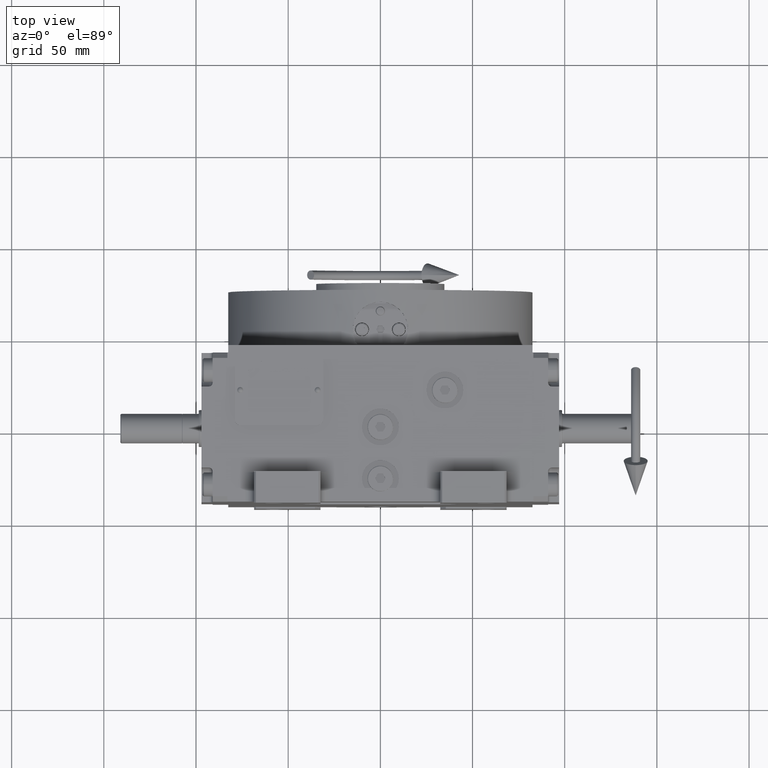
[diagram: clean part render]
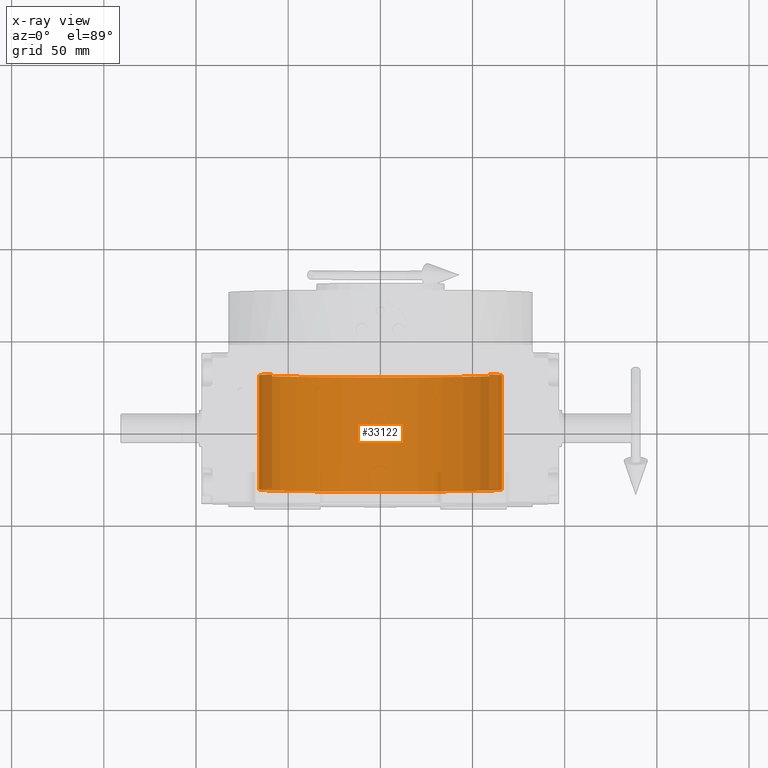
[diagram: x-ray — body ghosted, one internal face saturated and labeled with its STEP entity id]
A machine part, top view, then the same camera in x-ray: the body is ghosted and one INTERNAL B-rep face — a face not visible from any outside direction — is saturated and labeled: STEP entity #33122.
In plain terms, the highlighted cylindrical surface (partial cylindrical patch) has radius 66 mm, axis along (0, 1, 0).
Its self-contained STEP definition (entity closure, byte-faithful):
#372 = CIRCLE ( 'NONE', #14820, 66.00000000000000000 ) ;
#891 = VERTEX_POINT ( 'NONE', #11998 ) ;
#1172 = EDGE_CURVE ( 'NONE', #8907, #2842, #5791, .T. ) ;
#2842 = VERTEX_POINT ( 'NONE', #41459 ) ;
#4806 = AXIS2_PLACEMENT_3D ( 'NONE', #54785, #25354, #45394 ) ;
#5791 = LINE ( 'NONE', #44277, #28995 ) ;
#8907 = VERTEX_POINT ( 'NONE', #57338 ) ;
#11998 = CARTESIAN_POINT ( 'NONE',  ( 58.78775382679628336, -31.99999999999998579, 30.00000000000000000 ) ) ;
#14820 = AXIS2_PLACEMENT_3D ( 'NONE', #45154, #50629, #40610 ) ;
#15577 = FACE_OUTER_BOUND ( 'NONE', #22316, .T. ) ;
#16536 = DIRECTION ( 'NONE',  ( 0.000000000000000000, 0.000000000000000000, 1.000000000000000000 ) ) ;
#17998 = DIRECTION ( 'NONE',  ( 0.000000000000000000, -1.000000000000000000, 0.000000000000000000 ) ) ;
#22316 = EDGE_LOOP ( 'NONE', ( #47175, #62492, #27141, #36064 ) ) ;
#24417 = CIRCLE ( 'NONE', #4806, 66.00000000000000000 ) ;
#25354 = DIRECTION ( 'NONE',  ( -0.000000000000000000, 1.000000000000000000, -0.000000000000000000 ) ) ;
#27141 = ORIENTED_EDGE ( 'NONE', *, *, #47450, .T. ) ;
#27506 = LINE ( 'NONE', #47253, #37916 ) ;
#28995 = VECTOR ( 'NONE', #17998, 1000.000000000000000 ) ;
#30439 = AXIS2_PLACEMENT_3D ( 'NONE', #35280, #36252, #16536 ) ;
#33122 = ADVANCED_FACE ( 'NONE', ( #15577 ), #50784, .F. ) ;
#34414 = EDGE_CURVE ( 'NONE', #52541, #8907, #24417, .T. ) ;
#35280 = CARTESIAN_POINT ( 'NONE',  ( 0.000000000000000000, 98.15000000000000568, 0.000000000000000000 ) ) ;
#36064 = ORIENTED_EDGE ( 'NONE', *, *, #34414, .T. ) ;
#36252 = DIRECTION ( 'NONE',  ( -0.000000000000000000, 1.000000000000000000, -0.000000000000000000 ) ) ;
#37532 = DIRECTION ( 'NONE',  ( -0.000000000000000000, 1.000000000000000000, -0.000000000000000000 ) ) ;
#37916 = VECTOR ( 'NONE', #37532, 1000.000000000000000 ) ;
#40610 = DIRECTION ( 'NONE',  ( 0.000000000000000000, 0.000000000000000000, 1.000000000000000000 ) ) ;
#41459 = CARTESIAN_POINT ( 'NONE',  ( -58.78775382679628336, -31.99999999999998579, 30.00000000000000000 ) ) ;
#44277 = CARTESIAN_POINT ( 'NONE',  ( -58.78775382679628336, 98.15000000000000568, 30.00000000000000000 ) ) ;
#45154 = CARTESIAN_POINT ( 'NONE',  ( 0.000000000000000000, -31.99999999999998579, 0.000000000000000000 ) ) ;
#45394 = DIRECTION ( 'NONE',  ( 0.000000000000000000, 0.000000000000000000, 1.000000000000000000 ) ) ;
#47175 = ORIENTED_EDGE ( 'NONE', *, *, #1172, .T. ) ;
#47253 = CARTESIAN_POINT ( 'NONE',  ( 58.78775382679628336, 98.15000000000000568, 30.00000000000000000 ) ) ;
#47450 = EDGE_CURVE ( 'NONE', #891, #52541, #27506, .T. ) ;
#47798 = CARTESIAN_POINT ( 'NONE',  ( 58.78775382679628336, 30.00000000000001421, 30.00000000000000000 ) ) ;
#50629 = DIRECTION ( 'NONE',  ( -0.000000000000000000, 1.000000000000000000, -0.000000000000000000 ) ) ;
#50784 = CYLINDRICAL_SURFACE ( 'NONE', #30439, 66.00000000000000000 ) ;
#52541 = VERTEX_POINT ( 'NONE', #47798 ) ;
#54785 = CARTESIAN_POINT ( 'NONE',  ( 0.000000000000000000, 30.00000000000001421, 0.000000000000000000 ) ) ;
#57338 = CARTESIAN_POINT ( 'NONE',  ( -58.78775382679628336, 30.00000000000001421, 30.00000000000000000 ) ) ;
#62492 = ORIENTED_EDGE ( 'NONE', *, *, #63290, .F. ) ;
#63290 = EDGE_CURVE ( 'NONE', #891, #2842, #372, .T. ) ;